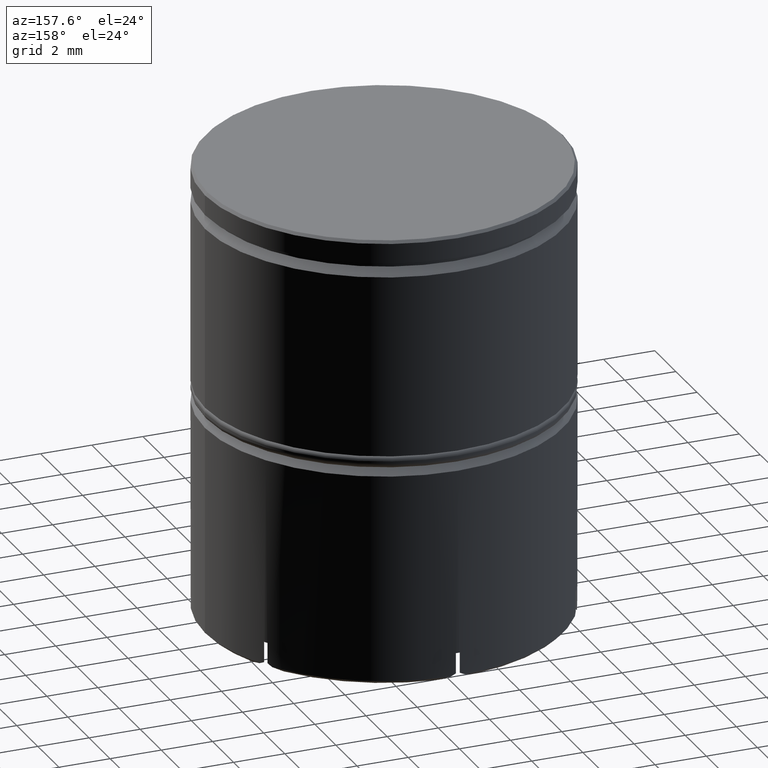
[diagram: clean part render]
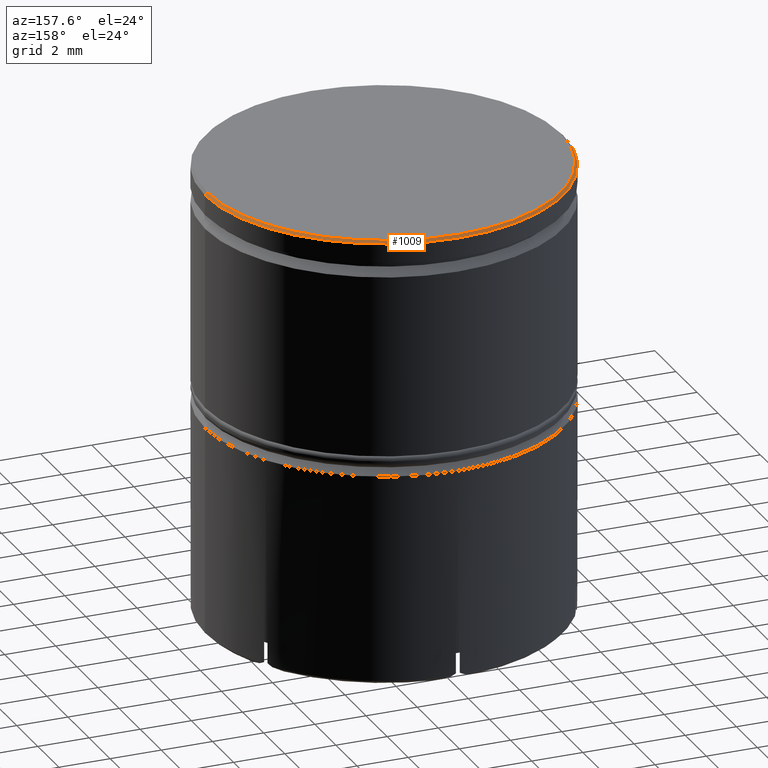
[diagram: same view with one face highlighted and labeled with its STEP entity id]
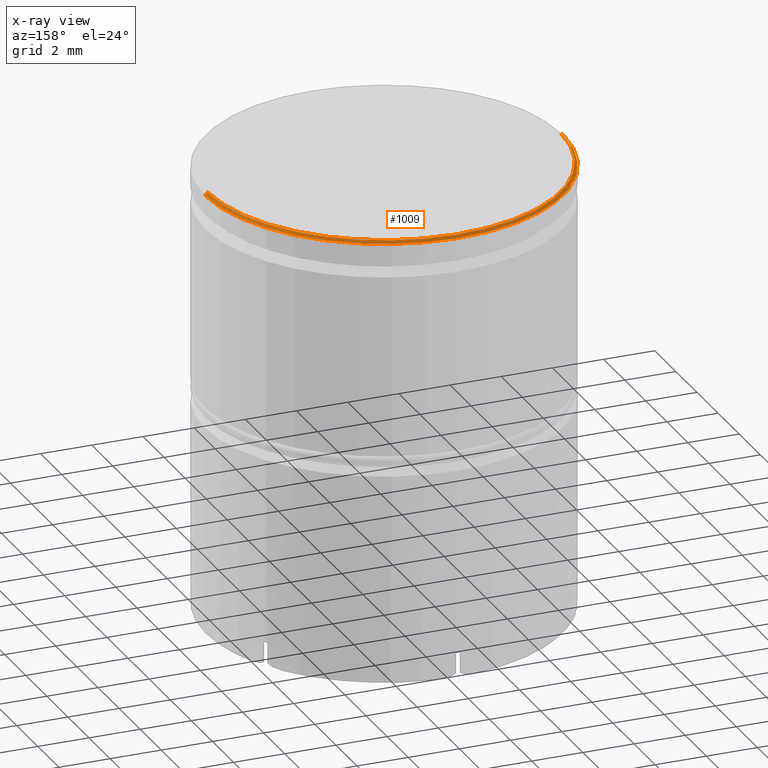
[diagram: x-ray of the same camera — body ghosted, the highlighted face saturated]
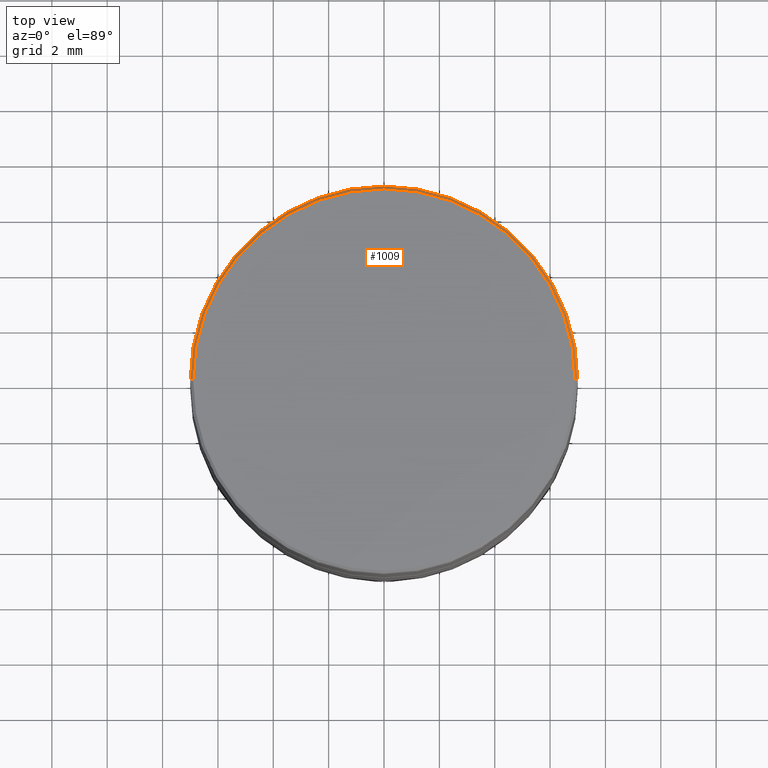
[diagram: same view with one face highlighted and labeled with its STEP entity id]
A machine part, auxiliary view. The second image highlights one B-rep face of the part: STEP entity #1009.
The next image is the same camera in x-ray: the body ghosted, the highlighted face saturated — about 0% of this face is hidden behind the body in this view.
A second angle (top view) of the same face is appended — the face is thin or edge-on in the first view.
In plain terms, the highlighted conical surface has half-angle 45 deg.
Its self-contained STEP definition (entity closure, byte-faithful):
#1 = DIRECTION ( 'NONE',  ( -1.000000000000000000, 0.000000000000000000, 0.000000000000000000 ) ) ;
#127 = CARTESIAN_POINT ( 'NONE',  ( 0.000000000000000000, 0.000000000000000000, -0.1000000000000011297 ) ) ;
#152 = LINE ( 'NONE', #1553, #1490 ) ;
#222 = DIRECTION ( 'NONE',  ( 0.000000000000000000, 0.000000000000000000, -1.000000000000000000 ) ) ;
#297 = DIRECTION ( 'NONE',  ( -0.000000000000000000, -0.000000000000000000, 1.000000000000000000 ) ) ;
#332 = VERTEX_POINT ( 'NONE', #395 ) ;
#395 = CARTESIAN_POINT ( 'NONE',  ( -7.000000000000000888, 8.572527594031474176E-16, -0.1000000000000011297 ) ) ;
#399 = AXIS2_PLACEMENT_3D ( 'NONE', #127, #486, #976 ) ;
#480 = CONICAL_SURFACE ( 'NONE', #1048, 6.899999999999999467, 0.7853981633974482790 ) ;
#486 = DIRECTION ( 'NONE',  ( 0.000000000000000000, 0.000000000000000000, -1.000000000000000000 ) ) ;
#620 = CARTESIAN_POINT ( 'NONE',  ( 0.000000000000000000, 0.000000000000000000, 0.000000000000000000 ) ) ;
#680 = AXIS2_PLACEMENT_3D ( 'NONE', #1586, #297, #829 ) ;
#692 = VERTEX_POINT ( 'NONE', #1154 ) ;
#742 = ORIENTED_EDGE ( 'NONE', *, *, #1065, .F. ) ;
#820 = LINE ( 'NONE', #1068, #1211 ) ;
#829 = DIRECTION ( 'NONE',  ( 1.000000000000000000, 0.000000000000000000, 0.000000000000000000 ) ) ;
#860 = FACE_OUTER_BOUND ( 'NONE', #1286, .T. ) ;
#973 = EDGE_CURVE ( 'NONE', #332, #1312, #992, .T. ) ;
#976 = DIRECTION ( 'NONE',  ( 1.000000000000000000, 0.000000000000000000, 0.000000000000000000 ) ) ;
#992 = CIRCLE ( 'NONE', #399, 7.000000000000000888 ) ;
#1003 = CARTESIAN_POINT ( 'NONE',  ( 7.000000000000000888, 0.000000000000000000, -0.1000000000000011297 ) ) ;
#1009 = ADVANCED_FACE ( 'NONE', ( #860 ), #480, .T. ) ;
#1048 = AXIS2_PLACEMENT_3D ( 'NONE', #620, #222, #1 ) ;
#1053 = DIRECTION ( 'NONE',  ( -0.7071067811865474617, 0.000000000000000000, -0.7071067811865474617 ) ) ;
#1065 = EDGE_CURVE ( 'NONE', #1119, #332, #152, .T. ) ;
#1068 = CARTESIAN_POINT ( 'NONE',  ( 6.899999999999999467, 8.450062914116736661E-16, 0.000000000000000000 ) ) ;
#1119 = VERTEX_POINT ( 'NONE', #1527 ) ;
#1154 = CARTESIAN_POINT ( 'NONE',  ( 6.899999999999999467, 8.511295254074105418E-16, 0.000000000000000000 ) ) ;
#1171 = ORIENTED_EDGE ( 'NONE', *, *, #973, .F. ) ;
#1211 = VECTOR ( 'NONE', #1570, 1000.000000000000114 ) ;
#1286 = EDGE_LOOP ( 'NONE', ( #1556, #1450, #1171, #742 ) ) ;
#1312 = VERTEX_POINT ( 'NONE', #1003 ) ;
#1394 = CIRCLE ( 'NONE', #680, 6.899999999999999467 ) ;
#1450 = ORIENTED_EDGE ( 'NONE', *, *, #1612, .T. ) ;
#1490 = VECTOR ( 'NONE', #1053, 1000.000000000000114 ) ;
#1527 = CARTESIAN_POINT ( 'NONE',  ( -6.899999999999999467, 0.000000000000000000, 0.000000000000000000 ) ) ;
#1553 = CARTESIAN_POINT ( 'NONE',  ( -6.899999999999999467, 0.000000000000000000, 0.000000000000000000 ) ) ;
#1556 = ORIENTED_EDGE ( 'NONE', *, *, #1606, .F. ) ;
#1570 = DIRECTION ( 'NONE',  ( 0.7071067811865474617, 8.659560562354932858E-17, -0.7071067811865474617 ) ) ;
#1586 = CARTESIAN_POINT ( 'NONE',  ( 0.000000000000000000, 0.000000000000000000, 0.000000000000000000 ) ) ;
#1606 = EDGE_CURVE ( 'NONE', #692, #1119, #1394, .T. ) ;
#1612 = EDGE_CURVE ( 'NONE', #692, #1312, #820, .T. ) ;